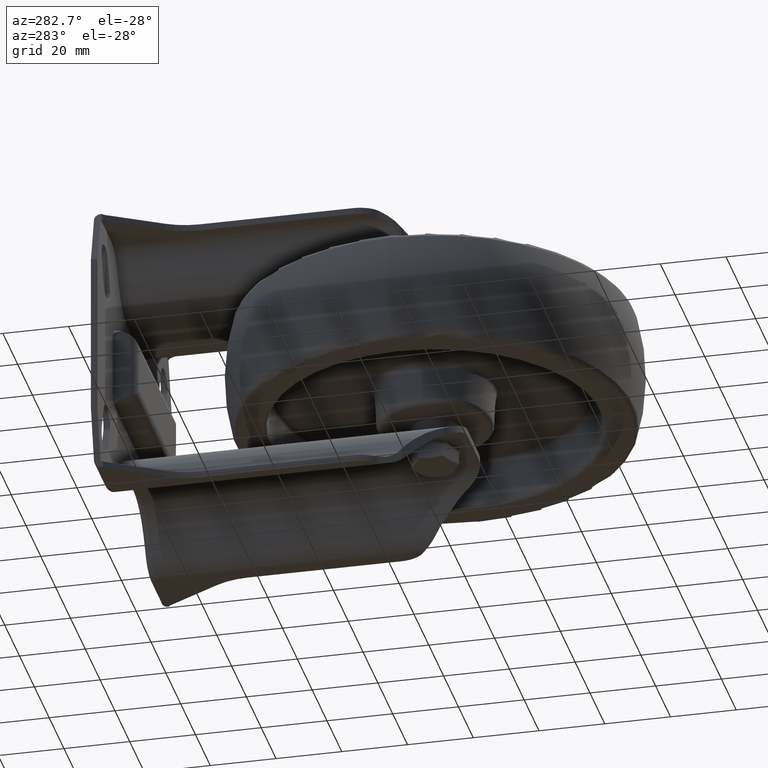
[diagram: clean part render]
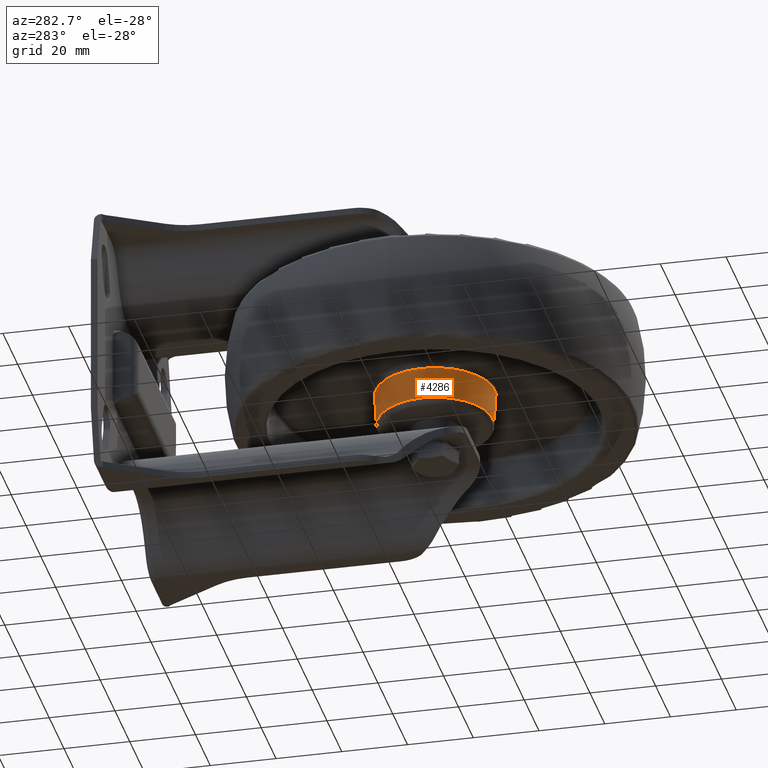
[diagram: same view with one face highlighted and labeled with its STEP entity id]
A machine part, auxiliary view. The second image highlights one B-rep face of the part: STEP entity #4286.
In plain terms, the highlighted conical surface has half-angle 3 deg.
Its self-contained STEP definition (entity closure, byte-faithful):
#317=CONICAL_SURFACE('',#4603,17.8524629664214,0.0523598775598297);
#381=FACE_OUTER_BOUND('',#630,.T.);
#630=EDGE_LOOP('',(#2874,#2875,#2876,#2877,#2878,#2879));
#852=LINE('',#6635,#1126);
#1126=VECTOR('',#5240,17.8524629664214);
#1429=CIRCLE('',#4601,17.5993299360794);
#1430=CIRCLE('',#4602,17.5993299360794);
#1431=CIRCLE('',#4604,18.1055959967634);
#1432=CIRCLE('',#4605,18.1055959967634);
#1678=VERTEX_POINT('',#6625);
#1679=VERTEX_POINT('',#6627);
#1680=VERTEX_POINT('',#6631);
#1681=VERTEX_POINT('',#6632);
#2126=EDGE_CURVE('',#1678,#1679,#1429,.T.);
#2127=EDGE_CURVE('',#1679,#1678,#1430,.T.);
#2128=EDGE_CURVE('',#1680,#1681,#1431,.T.);
#2129=EDGE_CURVE('',#1681,#1680,#1432,.T.);
#2130=EDGE_CURVE('',#1680,#1679,#852,.T.);
#2874=ORIENTED_EDGE('',*,*,#2128,.T.);
#2875=ORIENTED_EDGE('',*,*,#2129,.T.);
#2876=ORIENTED_EDGE('',*,*,#2130,.T.);
#2877=ORIENTED_EDGE('',*,*,#2126,.F.);
#2878=ORIENTED_EDGE('',*,*,#2127,.F.);
#2879=ORIENTED_EDGE('',*,*,#2130,.F.);
#4286=ADVANCED_FACE('',(#381),#317,.T.);
#4601=AXIS2_PLACEMENT_3D('',#6628,#5230,#5231);
#4602=AXIS2_PLACEMENT_3D('',#6629,#5232,#5233);
#4603=AXIS2_PLACEMENT_3D('',#6630,#5234,#5235);
#4604=AXIS2_PLACEMENT_3D('',#6633,#5236,#5237);
#4605=AXIS2_PLACEMENT_3D('',#6634,#5238,#5239);
#5230=DIRECTION('center_axis',(0.,0.,-1.));
#5231=DIRECTION('ref_axis',(1.,0.,0.));
#5232=DIRECTION('center_axis',(0.,0.,-1.));
#5233=DIRECTION('ref_axis',(1.,0.,0.));
#5234=DIRECTION('center_axis',(0.,0.,1.));
#5235=DIRECTION('ref_axis',(1.,0.,0.));
#5236=DIRECTION('center_axis',(0.,0.,-1.));
#5237=DIRECTION('ref_axis',(1.,0.,0.));
#5238=DIRECTION('center_axis',(0.,0.,-1.));
#5239=DIRECTION('ref_axis',(1.,0.,0.));
#5240=DIRECTION('',(0.0523359562429437,6.40930612932369E-18,-0.998629534754574));
#6625=CARTESIAN_POINT('',(17.5993299360794,-4.31045025254784E-15,-15.6046719124859));
#6627=CARTESIAN_POINT('',(-17.5993299360794,-2.15529630733578E-15,-15.6046719124859));
#6628=CARTESIAN_POINT('Origin',(0.,0.,-15.6046719124859));
#6629=CARTESIAN_POINT('Origin',(0.,0.,-15.6046719124859));
#6630=CARTESIAN_POINT('Origin',(0.,0.,-10.7746059603512));
#6631=CARTESIAN_POINT('',(-18.1055959967634,-2.21722278973775E-15,-5.94454000821644));
#6632=CARTESIAN_POINT('',(18.1055959967634,-2.21729601840914E-15,-5.94454000821644));
#6633=CARTESIAN_POINT('Origin',(0.,0.,-5.94454000821644));
#6634=CARTESIAN_POINT('Origin',(0.,0.,-5.94454000821644));
#6635=CARTESIAN_POINT('',(-17.8524629664214,-2.18629616287246E-15,-10.7746059603512));